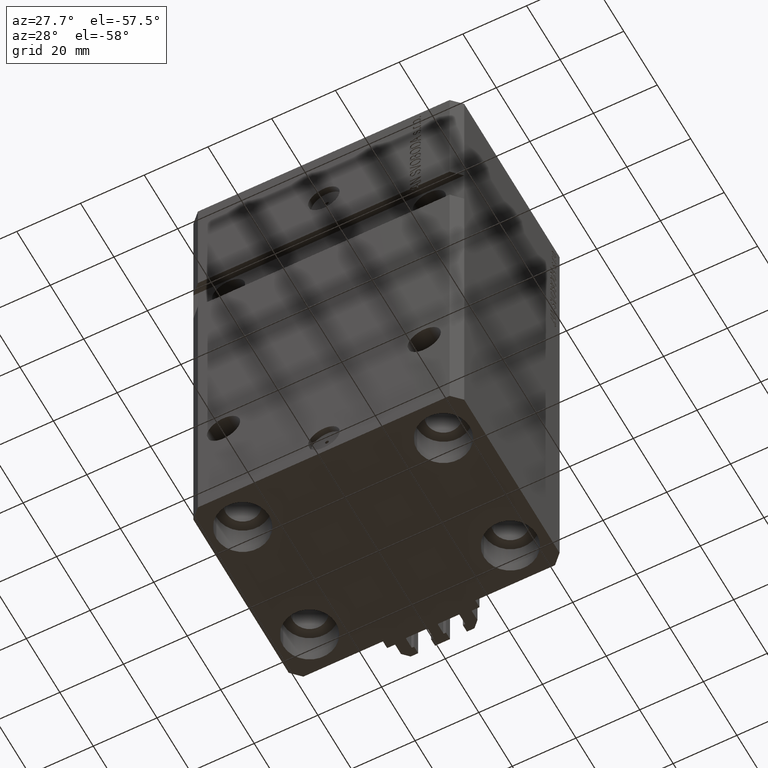
[diagram: clean part render]
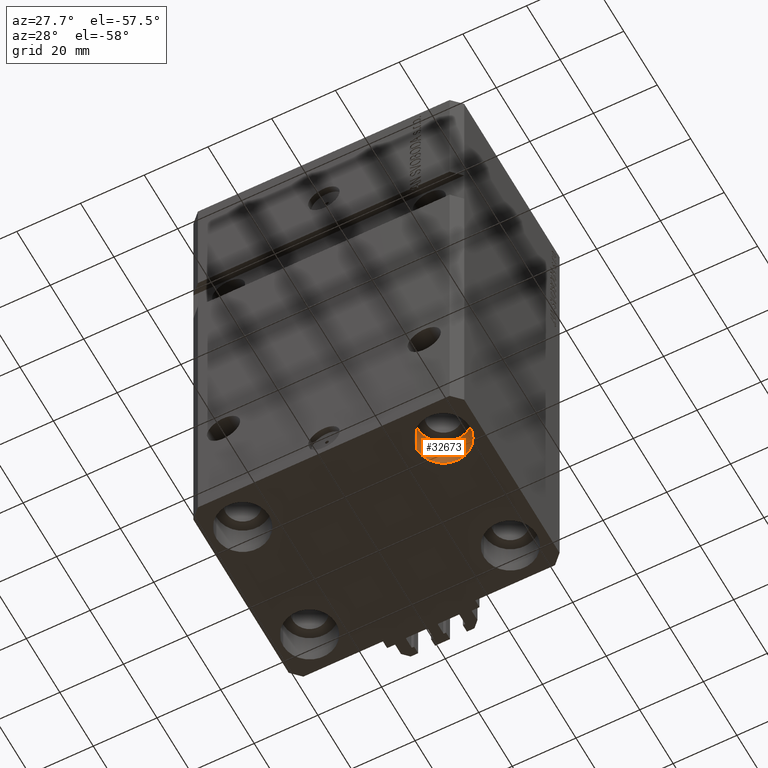
[diagram: same view with one face highlighted and labeled with its STEP entity id]
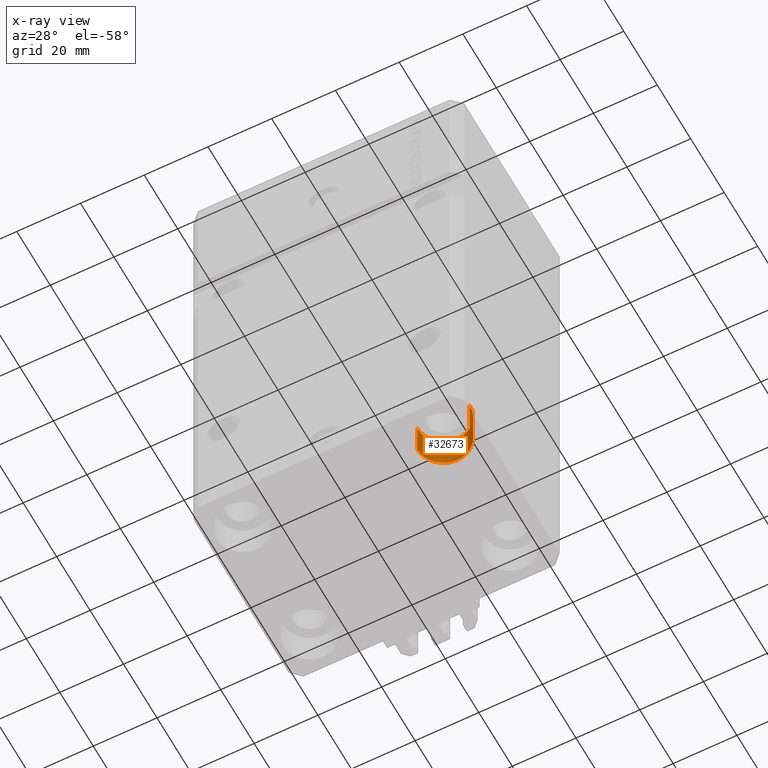
[diagram: x-ray of the same camera — body ghosted, the highlighted face saturated]
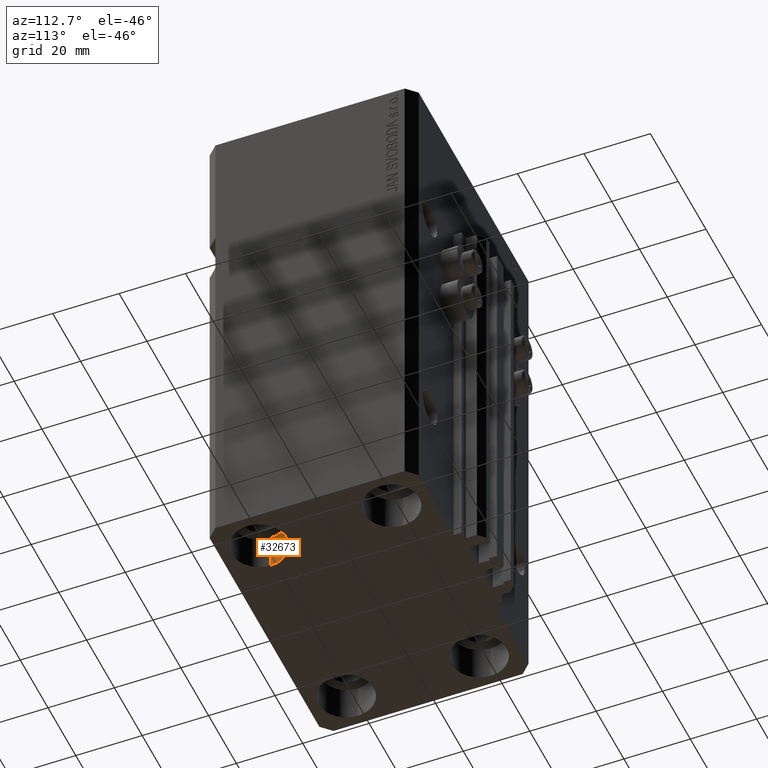
[diagram: same view with one face highlighted and labeled with its STEP entity id]
A machine part, auxiliary view. The second image highlights one B-rep face of the part: STEP entity #32673.
The next image is the same camera in x-ray: the body ghosted, the highlighted face saturated — about 0% of this face is hidden behind the body in this view.
A second angle (auxiliary view) of the same face is appended — the face is thin or edge-on in the first view.
In plain terms, the highlighted cylindrical surface (edge-blend (fillet) strip) has radius 8.25 mm, axis along (-0, -0, -1).
Its self-contained STEP definition (entity closure, byte-faithful):
#56 = CYLINDRICAL_SURFACE ( 'NONE', #20775, 8.249999999999996447 ) ;
#1217 = AXIS2_PLACEMENT_3D ( 'NONE', #24624, #31939, #17342 ) ;
#3707 = FACE_OUTER_BOUND ( 'NONE', #10888, .T. ) ;
#4086 = ORIENTED_EDGE ( 'NONE', *, *, #17181, .T. ) ;
#4127 = LINE ( 'NONE', #18969, #36135 ) ;
#4958 = ORIENTED_EDGE ( 'NONE', *, *, #31927, .F. ) ;
#6409 = VERTEX_POINT ( 'NONE', #25674 ) ;
#7559 = VECTOR ( 'NONE', #32786, 1000.000000000000000 ) ;
#8684 = ORIENTED_EDGE ( 'NONE', *, *, #14696, .F. ) ;
#10212 = CARTESIAN_POINT ( 'NONE',  ( 39.74999999999999289, -20.00000000000000000, -142.0000000000000000 ) ) ;
#10888 = EDGE_LOOP ( 'NONE', ( #4958, #4086, #33320, #8684 ) ) ;
#11281 = DIRECTION ( 'NONE',  ( 1.000000000000000000, 0.000000000000000000, 0.000000000000000000 ) ) ;
#12041 = CIRCLE ( 'NONE', #12803, 8.249999999999992895 ) ;
#12465 = DIRECTION ( 'NONE',  ( -1.000000000000000000, 0.000000000000000000, 0.000000000000000000 ) ) ;
#12803 = AXIS2_PLACEMENT_3D ( 'NONE', #18085, #22203, #11281 ) ;
#12932 = EDGE_CURVE ( 'NONE', #20647, #6409, #4127, .T. ) ;
#14696 = EDGE_CURVE ( 'NONE', #47364, #6409, #12041, .T. ) ;
#17181 = EDGE_CURVE ( 'NONE', #37602, #20647, #44709, .T. ) ;
#17342 = DIRECTION ( 'NONE',  ( 1.000000000000000000, 0.000000000000000000, 0.000000000000000000 ) ) ;
#18085 = CARTESIAN_POINT ( 'NONE',  ( 31.50000000000000000, -20.00000000000000000, -153.0000000000000000 ) ) ;
#18969 = CARTESIAN_POINT ( 'NONE',  ( 23.25000000000000355, -20.00000000000000000, -142.0000000000000000 ) ) ;
#20647 = VERTEX_POINT ( 'NONE', #28862 ) ;
#20775 = AXIS2_PLACEMENT_3D ( 'NONE', #34358, #26329, #12465 ) ;
#22203 = DIRECTION ( 'NONE',  ( -0.000000000000000000, -0.000000000000000000, 1.000000000000000000 ) ) ;
#24624 = CARTESIAN_POINT ( 'NONE',  ( 31.50000000000000000, -20.00000000000000000, -142.0000000000000000 ) ) ;
#25531 = DIRECTION ( 'NONE',  ( -0.000000000000000000, -0.000000000000000000, -1.000000000000000000 ) ) ;
#25674 = CARTESIAN_POINT ( 'NONE',  ( 23.25000000000000355, -20.00000000000000000, -153.0000000000000000 ) ) ;
#26329 = DIRECTION ( 'NONE',  ( -0.000000000000000000, -0.000000000000000000, -1.000000000000000000 ) ) ;
#28862 = CARTESIAN_POINT ( 'NONE',  ( 23.25000000000000355, -20.00000000000000000, -142.0000000000000000 ) ) ;
#31927 = EDGE_CURVE ( 'NONE', #37602, #47364, #32072, .T. ) ;
#31939 = DIRECTION ( 'NONE',  ( -0.000000000000000000, -0.000000000000000000, 1.000000000000000000 ) ) ;
#32072 = LINE ( 'NONE', #39356, #7559 ) ;
#32673 = ADVANCED_FACE ( 'NONE', ( #3707 ), #56, .F. ) ;
#32786 = DIRECTION ( 'NONE',  ( -0.000000000000000000, -0.000000000000000000, -1.000000000000000000 ) ) ;
#33320 = ORIENTED_EDGE ( 'NONE', *, *, #12932, .T. ) ;
#34358 = CARTESIAN_POINT ( 'NONE',  ( 31.50000000000000000, -20.00000000000000000, -142.0000000000000000 ) ) ;
#36135 = VECTOR ( 'NONE', #25531, 1000.000000000000000 ) ;
#37602 = VERTEX_POINT ( 'NONE', #10212 ) ;
#39356 = CARTESIAN_POINT ( 'NONE',  ( 39.74999999999999289, -20.00000000000000000, -142.0000000000000000 ) ) ;
#40604 = CARTESIAN_POINT ( 'NONE',  ( 39.74999999999999289, -20.00000000000000000, -153.0000000000000000 ) ) ;
#44709 = CIRCLE ( 'NONE', #1217, 8.249999999999992895 ) ;
#47364 = VERTEX_POINT ( 'NONE', #40604 ) ;